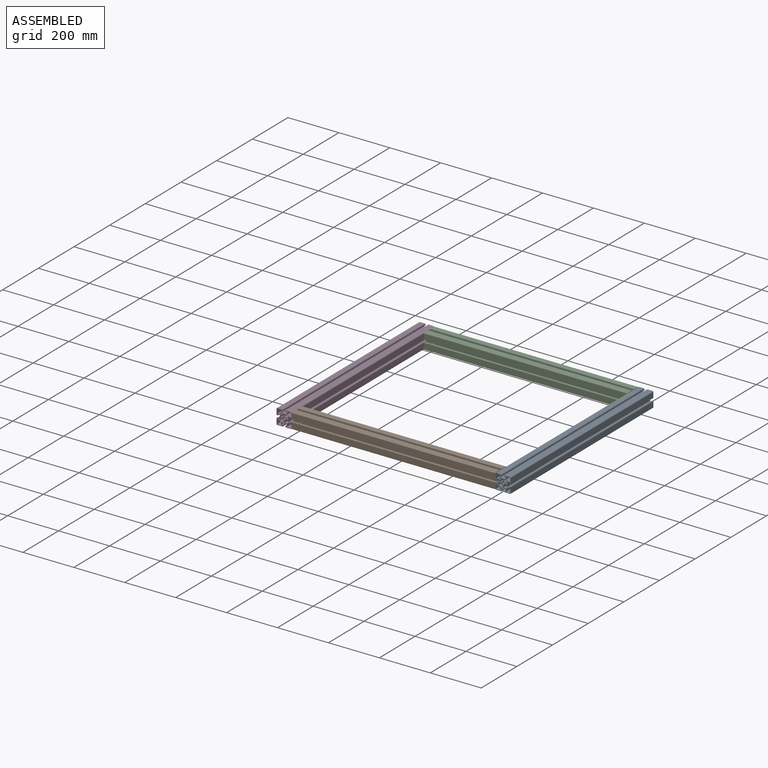
[diagram: assembled view]
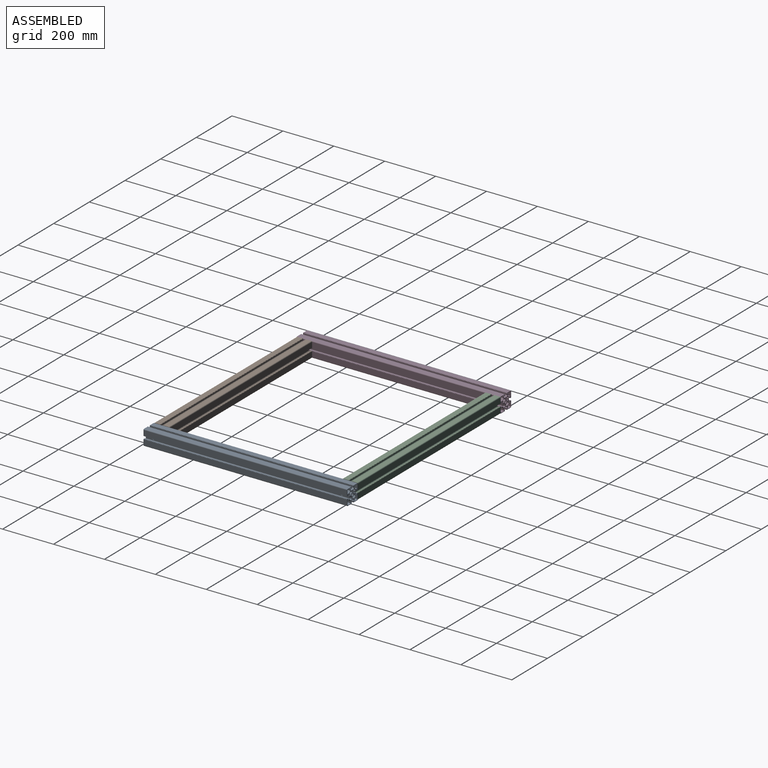
[diagram: assembled view, second angle]
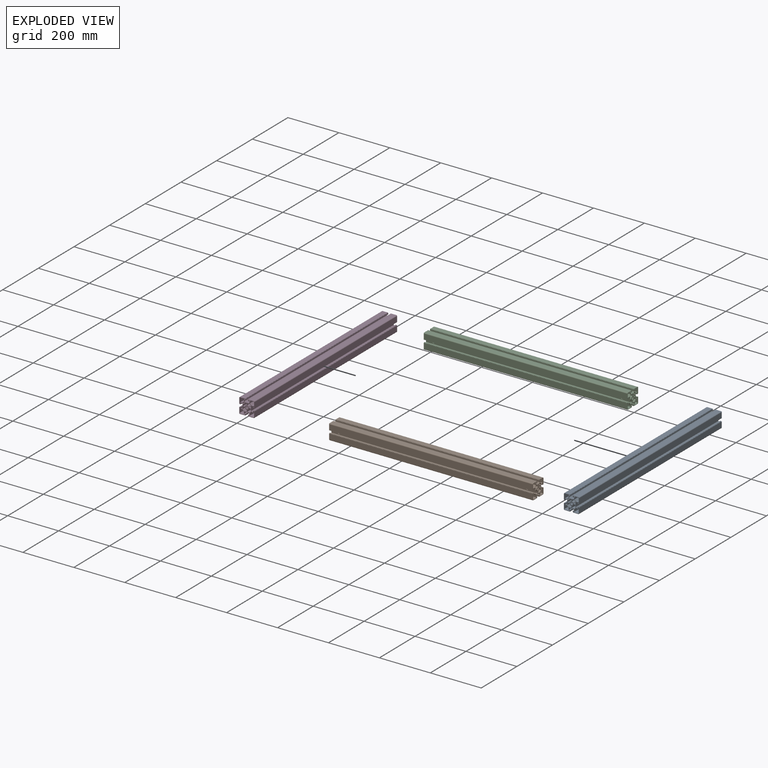
[diagram: exploded view]
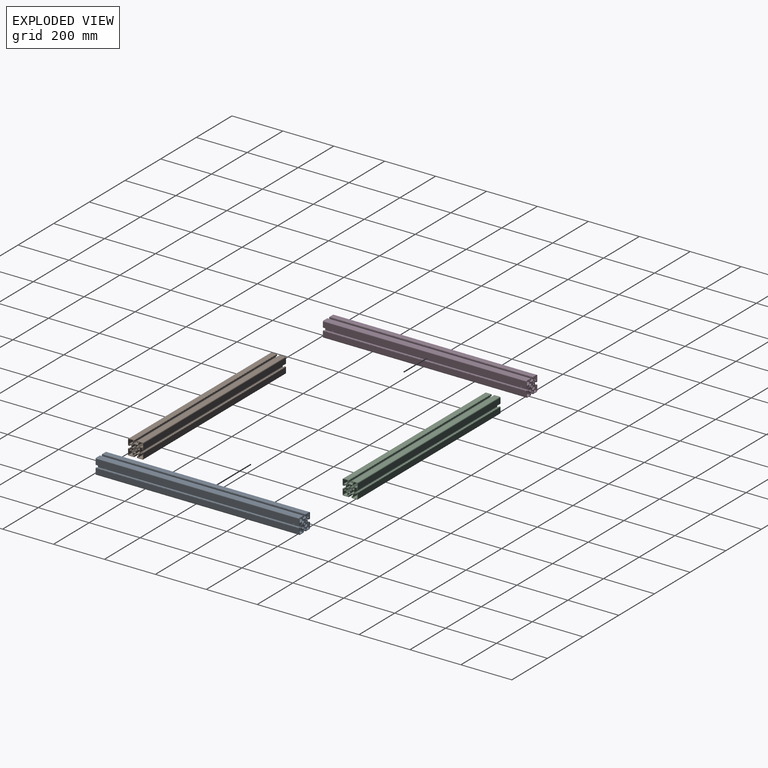
[diagram: exploded view, second angle]
ASSEMBLY  parts=4 mates=3
PART A: 258 faces, bbox 800x60x60 mm
  f0: cylinder r=8.05mm len=800mm, axis (-1,0,0), area 8542.8mm2, adj f34,f35,f36,f56,f57,f58,f59,f60
  f1: cylinder r=8.05mm len=800mm, axis (-1,0,0), area 8542.7mm2, adj f37,f38,f39,f54,f55,f61,f62,f63
  f2: cylinder r=8.05mm len=800mm, axis (-1,0,0), area 8542.7mm2, adj f40,f41,f42,f54,f55,f64,f65,f66
  f3: cylinder r=8.05mm len=800mm, axis (-1,0,0), area 8542.7mm2, adj f43,f44,f45,f56,f57,f67,f68,f69
  f4: cylinder r=5mm len=25.08mm, axis (-1,0,0), area 43.7mm2, adj f46,f187,f253,f254
  f5: cylinder r=5mm len=730.15mm, axis (-1,0,0), area 1274.2mm2, adj f47,f52,f254,f256
  f6: cylinder r=5mm len=25.08mm, axis (-1,0,0), area 43.7mm2, adj f53,f172,f252,f256
  f7: cylinder r=6.1mm len=26.43mm, axis (-1,0,0), area 68.2mm2, adj f46,f70,f253,f254
  f8: cylinder r=6.1mm len=732.86mm, axis (-1,0,0), area 1946.4mm2, adj f47,f71,f254,f256
  f9: cylinder r=6.1mm len=26.43mm, axis (-1,0,0), area 68.2mm2, adj f172,f173,f252,f256
  f10: cylinder r=5mm len=732.93mm, axis (-1,0,0), area 1278.2mm2, adj f54,f55,f71,f72,f254,f256
  f11: cylinder r=5mm len=26.46mm, axis (-1,0,0), area 45.7mm2, adj f55,f70,f174,f253,f254
  f12: cylinder r=5mm len=26.46mm, axis (-1,0,0), area 45.7mm2, adj f54,f73,f173,f252,f256
  f13: cylinder r=5mm len=732.93mm, axis (-1,0,0), area 1278.2mm2, adj f54,f55,f88,f89,f255,f257
  f14: cylinder r=5mm len=26.46mm, axis (-1,0,0), area 45.7mm2, adj f55,f87,f178,f253,f255
  f15: cylinder r=5mm len=26.46mm, axis (-1,0,0), area 45.7mm2, adj f54,f90,f177,f252,f257
  f16: cylinder r=6.1mm len=26.43mm, axis (-1,0,0), area 68.2mm2, adj f48,f178,f253,f255
  f17: cylinder r=6.1mm len=732.86mm, axis (-1,0,0), area 1946.4mm2, adj f49,f89,f255,f257
  f18: cylinder r=6.1mm len=26.43mm, axis (-1,0,0), area 68.2mm2, adj f90,f179,f252,f257
  f19: cylinder r=5mm len=25.08mm, axis (-1,0,0), area 43.7mm2, adj f48,f180,f253,f255
  f20: cylinder r=5mm len=730.15mm, axis (-1,0,0), area 1274.2mm2, adj f49,f50,f255,f257
  f21: cylinder r=5mm len=25.08mm, axis (-1,0,0), area 43.7mm2, adj f51,f179,f252,f257
  f22: cylinder r=6.1mm len=26.43mm, axis (-1,0,0), area 68.2mm2, adj f180,f181,f253,f255
  f23: cylinder r=6.1mm len=732.86mm, axis (-1,0,0), area 1946.4mm2, adj f50,f91,f255,f257
  f24: cylinder r=6.1mm len=26.43mm, axis (-1,0,0), area 68.2mm2, adj f51,f92,f252,f257
  f25: cylinder r=5mm len=26.46mm, axis (-1,0,0), area 45.7mm2, adj f57,f93,f181,f253,f255
  f26: cylinder r=5mm len=732.93mm, axis (-1,0,0), area 1278.2mm2, adj f56,f57,f91,f94,f255,f257
  f27: cylinder r=5mm len=26.46mm, axis (-1,0,0), area 45.7mm2, adj f56,f92,f182,f252,f257
  f28: cylinder r=5mm len=26.46mm, axis (-1,0,0), area 45.7mm2, adj f57,f110,f185,f253,f254
  f29: cylinder r=5mm len=732.93mm, axis (-1,0,0), area 1278.2mm2, adj f56,f57,f108,f111,f254,f256
  f30: cylinder r=5mm len=26.46mm, axis (-1,0,0), area 45.7mm2, adj f56,f109,f186,f252,f256
  f31: cylinder r=6.1mm len=26.43mm, axis (-1,0,0), area 68.2mm2, adj f110,f187,f253,f254
  f32: cylinder r=6.1mm len=732.86mm, axis (-1,0,0), area 1946.4mm2, adj f52,f111,f254,f256
  f33: cylinder r=6.1mm len=26.43mm, axis (-1,0,0), area 68.2mm2, adj f53,f186,f252,f256
  f34: plane 730.16x7.2mm, normal (0,-1,0), area 5257.5mm2, adj f0,f156,f254,f256
  f35: plane 25.08x7.2mm, normal (0,-1,0), area 180.6mm2, adj f0,f156,f253,f254
  f36: plane 25.08x7.2mm, normal (0,-1,0), area 180.6mm2, adj f0,f156,f252,f256
  f37: plane 25.08x7.2mm, normal (0,1,0), area 180.6mm2, adj f1,f157,f253,f254
  f38: plane 730.16x7.2mm, normal (0,1,0), area 5257.5mm2, adj f1,f157,f254,f256
  f39: plane 25.08x7.2mm, normal (0,1,0), area 180.6mm2, adj f1,f157,f252,f256
  f40: plane 25.08x7.2mm, normal (0,1,0), area 180.6mm2, adj f2,f166,f253,f255
  f41: plane 730.16x7.2mm, normal (0,1,0), area 5257.5mm2, adj f2,f166,f255,f257
  f42: plane 25.08x7.2mm, normal (0,1,0), area 180.6mm2, adj f2,f166,f252,f257
  f43: plane 730.16x7.2mm, normal (0,-1,0), area 5257.5mm2, adj f3,f167,f255,f257
  f44: plane 25.08x7.2mm, normal (0,-1,0), area 180.6mm2, adj f3,f167,f253,f255
  f45: plane 25.08x7.2mm, normal (0,-1,0), area 180.6mm2, adj f3,f167,f252,f257
  f46: plane 25.12x1.09mm, normal (0,0.98,-0.17), area 27.6mm2, adj f4,f7,f253,f254
  f47: plane 730.23x1.09mm, normal (0,0.98,-0.17), area 803.2mm2, adj f5,f8,f254,f256
  f48: plane 25.12x1.09mm, normal (0,0.98,0.17), area 27.6mm2, adj f16,f19,f253,f255
  f49: plane 730.23x1.09mm, normal (0,0.98,0.17), area 803.2mm2, adj f17,f20,f255,f257
  f50: plane 730.23x1.09mm, normal (0,-0.98,0.17), area 803.2mm2, adj f20,f23,f255,f257
  f51: plane 25.12x1.09mm, normal (0,-0.98,0.17), area 27.6mm2, adj f21,f24,f252,f257
  f52: plane 730.23x1.09mm, normal (0,-0.98,-0.17), area 803.2mm2, adj f5,f32,f254,f256
  f53: plane 25.12x1.09mm, normal (0,-0.98,-0.17), area 27.6mm2, adj f6,f33,f252,f256
  f54: cylinder r=5mm len=13.46mm, axis (0,-1,0), area 155.5mm2, adj f1,f2,f10,f12,f13,f15,f62,f63
  f55: cylinder r=5mm len=13.46mm, axis (0,-1,0), area 155.5mm2, adj f1,f2,f10,f11,f13,f14,f61,f62
  f56: cylinder r=5mm len=13.46mm, axis (0,-1,0), area 155.5mm2, adj f0,f3,f26,f27,f29,f30,f59,f60
  f57: cylinder r=5mm len=13.46mm, axis (0,-1,0), area 155.5mm2, adj f0,f3,f25,f26,f28,f29,f58,f59
  f58: plane 25.08x7.2mm, normal (0,0,1), area 180.6mm2, adj f0,f57,f152,f253
  f59: plane 730.16x7.2mm, normal (0,0,1), area 5257.5mm2, adj f0,f56,f57,f152
  f60: plane 25.08x7.2mm, normal (0,0,1), area 180.6mm2, adj f0,f56,f152,f252
  f61: plane 25.08x7.2mm, normal (0,0,1), area 180.6mm2, adj f1,f55,f161,f253
  f62: plane 730.16x7.2mm, normal (0,0,1), area 5257.5mm2, adj f1,f54,f55,f161
  f63: plane 25.08x7.2mm, normal (0,0,1), area 180.6mm2, adj f1,f54,f161,f252
  f64: plane 730.16x7.2mm, normal (0,0,-1), area 5257.5mm2, adj f2,f54,f55,f162
  f65: plane 25.08x7.2mm, normal (0,0,-1), area 180.6mm2, adj f2,f55,f162,f253
  f66: plane 25.08x7.2mm, normal (0,0,-1), area 180.6mm2, adj f2,f54,f162,f252
  f67: plane 730.16x7.2mm, normal (0,0,-1), area 5257.5mm2, adj f3,f56,f57,f171
  f68: plane 25.08x7.2mm, normal (0,0,-1), area 180.6mm2, adj f3,f57,f171,f253
  f69: plane 25.08x7.2mm, normal (0,0,-1), area 180.6mm2, adj f3,f56,f171,f252
  f70: plane 26.46x0.93mm, normal (0,-0.82,0.57), area 28.8mm2, adj f7,f11,f253,f254
  f71: plane 732.89x0.93mm, normal (0,-0.82,0.57), area 805.5mm2, adj f8,f10,f254,f256
  f72: plane 732.89x0.93mm, normal (0,0.57,-0.82), area 805.5mm2, adj f10,f54,f55,f75
  f73: plane 26.46x0.93mm, normal (0,0.57,-0.82), area 28.8mm2, adj f12,f54,f76,f252
  f74: cylinder r=6.1mm len=26.43mm, axis (-1,0,0), area 68.2mm2, adj f55,f77,f174,f253
  f75: cylinder r=6.1mm len=732.86mm, axis (-1,0,0), area 1946.4mm2, adj f54,f55,f72,f78
  f76: cylinder r=6.1mm len=26.43mm, axis (-1,0,0), area 68.2mm2, adj f54,f73,f175,f252
  f77: plane 25.12x1.09mm, normal (0,-0.17,0.98), area 27.6mm2, adj f55,f74,f80,f253
  f78: plane 730.23x1.09mm, normal (0,-0.17,0.98), area 803.2mm2, adj f54,f55,f75,f79
  f79: cylinder r=5mm len=730.15mm, axis (-1,0,0), area 1274.2mm2, adj f54,f55,f78,f82
  f80: cylinder r=5mm len=25.08mm, axis (-1,0,0), area 43.7mm2, adj f55,f77,f176,f253
  f81: cylinder r=5mm len=25.08mm, axis (-1,0,0), area 43.7mm2, adj f54,f83,f175,f252
  f82: plane 730.23x1.09mm, normal (0,-0.17,-0.98), area 803.2mm2, adj f54,f55,f79,f85
  f83: plane 25.12x1.09mm, normal (0,-0.17,-0.98), area 27.6mm2, adj f54,f81,f86,f252
  f84: cylinder r=6.1mm len=26.43mm, axis (-1,0,0), area 68.2mm2, adj f55,f87,f176,f253
  f85: cylinder r=6.1mm len=732.86mm, axis (-1,0,0), area 1946.4mm2, adj f54,f55,f82,f88
  f86: cylinder r=6.1mm len=26.43mm, axis (-1,0,0), area 68.2mm2, adj f54,f83,f177,f252
  f87: plane 26.46x0.93mm, normal (0,0.57,0.82), area 28.8mm2, adj f14,f55,f84,f253
  f88: plane 732.89x0.93mm, normal (0,0.57,0.82), area 805.5mm2, adj f13,f54,f55,f85
  f89: plane 732.89x0.93mm, normal (0,-0.82,-0.57), area 805.5mm2, adj f13,f17,f255,f257
  f90: plane 26.46x0.93mm, normal (0,-0.82,-0.57), area 28.8mm2, adj f15,f18,f252,f257
  f91: plane 732.89x0.93mm, normal (0,0.82,-0.57), area 805.5mm2, adj f23,f26,f255,f257
  f92: plane 26.46x0.93mm, normal (0,0.82,-0.57), area 28.8mm2, adj f24,f27,f252,f257
  f93: plane 26.46x0.93mm, normal (0,-0.57,0.82), area 28.8mm2, adj f25,f57,f95,f253
  f94: plane 732.89x0.93mm, normal (0,-0.57,0.82), area 805.5mm2, adj f26,f56,f57,f96
  f95: cylinder r=6.1mm len=26.43mm, axis (-1,0,0), area 68.2mm2, adj f57,f93,f183,f253
  f96: cylinder r=6.1mm len=732.86mm, axis (-1,0,0), area 1946.4mm2, adj f56,f57,f94,f98
  f97: cylinder r=6.1mm len=26.43mm, axis (-1,0,0), area 68.2mm2, adj f56,f99,f182,f252
  f98: plane 730.23x1.09mm, normal (0,0.17,-0.98), area 803.2mm2, adj f56,f57,f96,f101
  f99: plane 25.12x1.09mm, normal (0,0.17,-0.98), area 27.6mm2, adj f56,f97,f102,f252
  f100: cylinder r=5mm len=25.08mm, axis (-1,0,0), area 43.7mm2, adj f57,f103,f183,f253
  f101: cylinder r=5mm len=730.15mm, axis (-1,0,0), area 1274.2mm2, adj f56,f57,f98,f104
  f102: cylinder r=5mm len=25.08mm, axis (-1,0,0), area 43.7mm2, adj f56,f99,f184,f252
  f103: plane 25.12x1.09mm, normal (0,0.17,0.98), area 27.6mm2, adj f57,f100,f105,f253
  f104: plane 730.23x1.09mm, normal (0,0.17,0.98), area 803.2mm2, adj f56,f57,f101,f106
  f105: cylinder r=6.1mm len=26.43mm, axis (-1,0,0), area 68.2mm2, adj f57,f103,f185,f253
  f106: cylinder r=6.1mm len=732.86mm, axis (-1,0,0), area 1946.4mm2, adj f56,f57,f104,f108
  f107: cylinder r=6.1mm len=26.43mm, axis (-1,0,0), area 68.2mm2, adj f56,f109,f184,f252
  f108: plane 732.89x0.93mm, normal (0,-0.57,-0.82), area 805.5mm2, adj f29,f56,f57,f106
  f109: plane 26.46x0.93mm, normal (0,-0.57,-0.82), area 28.8mm2, adj f30,f56,f107,f252
  f110: plane 26.46x0.93mm, normal (0,0.82,0.57), area 28.8mm2, adj f28,f31,f253,f254
  f111: plane 732.89x0.93mm, normal (0,0.82,0.57), area 805.5mm2, adj f29,f32,f254,f256
  f112: plane 800x7.81mm, normal (0,-1,0), area 6248.1mm2, adj f113,f121,f252,f253
  f113: plane 800x6.14mm, normal (0,-0.71,0.71), area 6946.5mm2, adj f112,f114,f252,f253
  f114: plane 800x7.81mm, normal (0,0,1), area 6248.1mm2, adj f113,f115,f252,f253
  f115: plane 800x4.35mm, normal (0,-1,0), area 3480mm2, adj f114,f116,f252,f253
  f116: plane 800x2.4mm, normal (0,0,1), area 1920mm2, adj f115,f117,f252,f253
  f117: plane 800x18.2mm, normal (0,1,0), area 14560mm2, adj f116,f118,f252,f253
  f118: cylinder r=2.5mm len=800mm, axis (-1,0,0), area 3141.6mm2, adj f117,f119,f252,f253
  f119: plane 800x18.2mm, normal (0,0,-1), area 14560mm2, adj f118,f120,f252,f253
  f120: plane 800x2.4mm, normal (0,-1,0), area 1920mm2, adj f119,f121,f252,f253
  f121: plane 800x4.35mm, normal (0,0,1), area 3480mm2, adj f112,f120,f252,f253
  f122: plane 800x7.81mm, normal (0,0,1), area 6248.1mm2, adj f123,f131,f252,f253
  f123: plane 800x6.14mm, normal (0,0.71,0.71), area 6946.5mm2, adj f122,f124,f252,f253
  f124: plane 800x7.81mm, normal (0,1,0), area 6248.1mm2, adj f123,f125,f252,f253
  f125: plane 800x4.35mm, normal (0,0,1), area 3480mm2, adj f124,f126,f252,f253
  f126: plane 800x2.4mm, normal (0,1,0), area 1920mm2, adj f125,f127,f252,f253
  f127: plane 800x18.2mm, normal (0,0,-1), area 14560mm2, adj f126,f128,f252,f253
  f128: cylinder r=2.5mm len=800mm, axis (-1,0,0), area 3141.6mm2, adj f127,f129,f252,f253
  f129: plane 800x18.2mm, normal (0,-1,0), area 14560mm2, adj f128,f130,f252,f253
  f130: plane 800x2.4mm, normal (0,0,1), area 1920mm2, adj f129,f131,f252,f253
  f131: plane 800x4.35mm, normal (0,1,0), area 3480mm2, adj f122,f130,f252,f253
  f132: plane 800x7.81mm, normal (0,1,0), area 6248.1mm2, adj f133,f141,f252,f253
  f133: plane 800x6.14mm, normal (0,0.71,-0.71), area 6946.5mm2, adj f132,f134,f252,f253
  f134: plane 800x7.81mm, normal (0,0,-1), area 6248.1mm2, adj f133,f135,f252,f253
  f135: plane 800x4.35mm, normal (0,1,0), area 3480mm2, adj f134,f136,f252,f253
  f136: plane 800x2.4mm, normal (0,0,-1), area 1920mm2, adj f135,f137,f252,f253
  f137: plane 800x18.2mm, normal (0,-1,0), area 14560mm2, adj f136,f138,f252,f253
  f138: cylinder r=2.5mm len=800mm, axis (-1,0,0), area 3141.6mm2, adj f137,f139,f252,f253
  f139: plane 800x18.2mm, normal (0,0,1), area 14560mm2, adj f138,f140,f252,f253
  f140: plane 800x2.4mm, normal (0,1,0), area 1920mm2, adj f139,f141,f252,f253
  f141: plane 800x4.35mm, normal (0,0,-1), area 3480mm2, adj f132,f140,f252,f253
  f142: plane 800x7.81mm, normal (0,0,-1), area 6248.1mm2, adj f143,f151,f252,f253
  f143: plane 800x6.14mm, normal (0,-0.71,-0.71), area 6946.5mm2, adj f142,f144,f252,f253
  f144: plane 800x7.81mm, normal (0,-1,0), area 6248.1mm2, adj f143,f145,f252,f253
  f145: plane 800x4.35mm, normal (0,0,-1), area 3480mm2, adj f144,f146,f252,f253
  f146: plane 800x2.4mm, normal (0,-1,0), area 1920mm2, adj f145,f147,f252,f253
  f147: plane 800x18.2mm, normal (0,0,1), area 14560mm2, adj f146,f148,f252,f253
  f148: cylinder r=2.5mm len=800mm, axis (-1,0,0), area 3141.6mm2, adj f147,f149,f252,f253
  f149: plane 800x18.2mm, normal (0,1,0), area 14560mm2, adj f148,f150,f252,f253
  f150: plane 800x2.4mm, normal (0,0,-1), area 1920mm2, adj f149,f151,f252,f253
  f151: plane 800x4.35mm, normal (0,-1,0), area 3480mm2, adj f142,f150,f252,f253
  f152: plane 800x7.1mm, normal (0,1,0), area 5615.8mm2, adj f56,f57,f58,f59,f60,f153,f252,f253
  f153: plane 800x2.05mm, normal (0,0.71,0.71), area 2318.6mm2, adj f152,f154,f252,f253
  f154: plane 800x7.2mm, normal (0,0.71,-0.71), area 8150.9mm2, adj f153,f155,f252,f253
  f155: plane 800x2.05mm, normal (0,-0.71,-0.71), area 2318.6mm2, adj f154,f156,f252,f253
  f156: plane 800x7.1mm, normal (0,0,-1), area 5615.8mm2, adj f34,f35,f36,f155,f252,f253,f254,f256
  f157: plane 800x7.1mm, normal (0,0,-1), area 5615.8mm2, adj f37,f38,f39,f158,f252,f253,f254,f256
  f158: plane 800x2.05mm, normal (0,0.71,-0.71), area 2318.6mm2, adj f157,f159,f252,f253
  f159: plane 800x7.2mm, normal (0,-0.71,-0.71), area 8150.9mm2, adj f158,f160,f252,f253
  f160: plane 800x2.05mm, normal (0,-0.71,0.71), area 2318.6mm2, adj f159,f161,f252,f253
  f161: plane 800x7.1mm, normal (0,-1,0), area 5615.8mm2, adj f54,f55,f61,f62,f63,f160,f252,f253
  f162: plane 800x7.1mm, normal (0,-1,0), area 5615.8mm2, adj f54,f55,f64,f65,f66,f163,f252,f253
  f163: plane 800x2.05mm, normal (0,-0.71,-0.71), area 2318.6mm2, adj f162,f164,f252,f253
  f164: plane 800x7.2mm, normal (0,-0.71,0.71), area 8150.9mm2, adj f163,f165,f252,f253
  f165: plane 800x2.05mm, normal (0,0.71,0.71), area 2318.6mm2, adj f164,f166,f252,f253
  f166: plane 800x7.1mm, normal (0,0,1), area 5615.8mm2, adj f40,f41,f42,f165,f252,f253,f255,f257
  f167: plane 800x7.1mm, normal (0,0,1), area 5615.8mm2, adj f43,f44,f45,f168,f252,f253,f255,f257
  f168: plane 800x2.05mm, normal (0,-0.71,0.71), area 2318.6mm2, adj f167,f169,f252,f253
  f169: plane 800x7.2mm, normal (0,0.71,0.71), area 8150.9mm2, adj f168,f170,f252,f253
  f170: plane 800x2.05mm, normal (0,0.71,-0.71), area 2318.6mm2, adj f169,f171,f252,f253
  f171: plane 800x7.1mm, normal (0,1,0), area 5615.8mm2, adj f56,f57,f67,f68,f69,f170,f252,f253
  f172: plane 25.12x1.09mm, normal (0,0.98,-0.17), area 27.6mm2, adj f6,f9,f252,f256
  f173: plane 26.46x0.93mm, normal (0,-0.82,0.57), area 28.8mm2, adj f9,f12,f252,f256
  f174: plane 26.46x0.93mm, normal (0,0.57,-0.82), area 28.8mm2, adj f11,f55,f74,f253
  f175: plane 25.12x1.09mm, normal (0,-0.17,0.98), area 27.6mm2, adj f54,f76,f81,f252
  f176: plane 25.12x1.09mm, normal (0,-0.17,-0.98), area 27.6mm2, adj f55,f80,f84,f253
  f177: plane 26.46x0.93mm, normal (0,0.57,0.82), area 28.8mm2, adj f15,f54,f86,f252
  f178: plane 26.46x0.93mm, normal (0,-0.82,-0.57), area 28.8mm2, adj f14,f16,f253,f255
  f179: plane 25.12x1.09mm, normal (0,0.98,0.17), area 27.6mm2, adj f18,f21,f252,f257
  f180: plane 25.12x1.09mm, normal (0,-0.98,0.17), area 27.6mm2, adj f19,f22,f253,f255
  f181: plane 26.46x0.93mm, normal (0,0.82,-0.57), area 28.8mm2, adj f22,f25,f253,f255
  f182: plane 26.46x0.93mm, normal (0,-0.57,0.82), area 28.8mm2, adj f27,f56,f97,f252
  f183: plane 25.12x1.09mm, normal (0,0.17,-0.98), area 27.6mm2, adj f57,f95,f100,f253
  f184: plane 25.12x1.09mm, normal (0,0.17,0.98), area 27.6mm2, adj f56,f102,f107,f252
  f185: plane 26.46x0.93mm, normal (0,-0.57,-0.82), area 28.8mm2, adj f28,f57,f105,f253
  f186: plane 26.46x0.93mm, normal (0,0.82,0.57), area 28.8mm2, adj f30,f33,f252,f256
  f187: plane 25.12x1.09mm, normal (0,-0.98,-0.17), area 27.6mm2, adj f4,f31,f253,f254
  f188: plane 800x21.2mm, normal (0,0,-1), area 16960mm2, adj f189,f251,f252,f253
  f189: cylinder r=3mm len=800mm, axis (-1,0,0), area 3769.9mm2, adj f188,f190,f252,f253
  f190: plane 800x21.2mm, normal (0,-1,0), area 16960mm2, adj f189,f191,f252,f253
  f191: plane 800x1.5mm, normal (0,0,1), area 1200mm2, adj f190,f192,f252,f253
  f192: plane 800x0.8mm, normal (0,-1,0), area 640mm2, adj f191,f193,f252,f253
  f193: plane 800x4.5mm, normal (0,0,1), area 3600mm2, adj f192,f194,f252,f253
  f194: plane 800x5.05mm, normal (0,1,0), area 4040mm2, adj f193,f195,f252,f253
  f195: plane 800x4.2mm, normal (0,0,1), area 3360mm2, adj f194,f196,f252,f253
  f196: plane 800x2.8mm, normal (0,-0.71,0.71), area 3167.8mm2, adj f195,f197,f252,f253
  f197: plane 800x14.5mm, normal (0,-1,0), area 11442.9mm2, adj f56,f57,f196,f198,f252,f253
  f198: plane 800x2.8mm, normal (0,-0.71,-0.71), area 3167.8mm2, adj f197,f199,f252,f253
  f199: plane 800x4.2mm, normal (0,0,-1), area 3360mm2, adj f198,f200,f252,f253
  f200: plane 800x5.05mm, normal (0,1,0), area 4040mm2, adj f199,f201,f252,f253
  f201: plane 800x4.5mm, normal (0,0,-1), area 3600mm2, adj f200,f202,f252,f253
  f202: plane 800x0.8mm, normal (0,-1,0), area 640mm2, adj f201,f203,f252,f253
  f203: plane 800x1.5mm, normal (0,0,-1), area 1200mm2, adj f202,f204,f252,f253
  f204: plane 800x21.2mm, normal (0,-1,0), area 16960mm2, adj f203,f205,f252,f253
  f205: cylinder r=3mm len=800mm, axis (-1,0,0), area 3769.9mm2, adj f204,f206,f252,f253
  f206: plane 800x21.2mm, normal (0,0,1), area 16960mm2, adj f205,f207,f252,f253
  f207: plane 800x1.5mm, normal (0,1,0), area 1200mm2, adj f206,f208,f252,f253
  f208: plane 800x0.8mm, normal (0,0,1), area 640mm2, adj f207,f209,f252,f253
  f209: plane 800x4.5mm, normal (0,1,0), area 3600mm2, adj f208,f210,f252,f253
  f210: plane 800x5.05mm, normal (0,0,-1), area 4040mm2, adj f209,f211,f252,f253
  f211: plane 800x4.2mm, normal (0,1,0), area 3360mm2, adj f210,f212,f252,f253
  f212: plane 800x2.8mm, normal (0,0.71,0.71), area 3167.8mm2, adj f211,f213,f252,f253
  f213: plane 800x14.5mm, normal (0,0,1), area 11442.9mm2, adj f212,f214,f252,f253,f254,f256
  f214: plane 800x2.8mm, normal (0,-0.71,0.71), area 3167.8mm2, adj f213,f215,f252,f253
  f215: plane 800x4.2mm, normal (0,-1,0), area 3360mm2, adj f214,f216,f252,f253
  f216: plane 800x5.05mm, normal (0,0,-1), area 4040mm2, adj f215,f217,f252,f253
  f217: plane 800x4.5mm, normal (0,-1,0), area 3600mm2, adj f216,f218,f252,f253
  f218: plane 800x0.8mm, normal (0,0,1), area 640mm2, adj f217,f219,f252,f253
  f219: plane 800x1.5mm, normal (0,-1,0), area 1200mm2, adj f218,f220,f252,f253
  f220: plane 800x21.2mm, normal (0,0,1), area 16960mm2, adj f219,f221,f252,f253
  f221: cylinder r=3mm len=800mm, axis (-1,0,0), area 3769.9mm2, adj f220,f222,f252,f253
  f222: plane 800x21.2mm, normal (0,1,0), area 16960mm2, adj f221,f223,f252,f253
  f223: plane 800x1.5mm, normal (0,0,-1), area 1200mm2, adj f222,f224,f252,f253
  f224: plane 800x0.8mm, normal (0,1,0), area 640mm2, adj f223,f225,f252,f253
  f225: plane 800x4.5mm, normal (0,0,-1), area 3600mm2, adj f224,f226,f252,f253
  f226: plane 800x5.05mm, normal (0,-1,0), area 4040mm2, adj f225,f227,f252,f253
  f227: plane 800x4.2mm, normal (0,0,-1), area 3360mm2, adj f226,f228,f252,f253
  f228: plane 800x2.8mm, normal (0,0.71,-0.71), area 3167.8mm2, adj f227,f229,f252,f253
  f229: plane 800x14.5mm, normal (0,1,0), area 11442.9mm2, adj f54,f55,f228,f230,f252,f253
  f230: plane 800x2.8mm, normal (0,0.71,0.71), area 3167.8mm2, adj f229,f231,f252,f253
  f231: plane 800x4.2mm, normal (0,0,1), area 3360mm2, adj f230,f232,f252,f253
  f232: plane 800x5.05mm, normal (0,-1,0), area 4040mm2, adj f231,f233,f252,f253
  f233: plane 800x4.5mm, normal (0,0,1), area 3600mm2, adj f232,f234,f252,f253
  f234: plane 800x0.8mm, normal (0,1,0), area 640mm2, adj f233,f235,f252,f253
  f235: plane 800x1.5mm, normal (0,0,1), area 1200mm2, adj f234,f236,f252,f253
  f236: plane 800x21.2mm, normal (0,1,0), area 16960mm2, adj f235,f237,f252,f253
  f237: cylinder r=3mm len=800mm, axis (-1,0,0), area 3769.9mm2, adj f236,f238,f252,f253
  f238: plane 800x21.2mm, normal (0,0,-1), area 16960mm2, adj f237,f239,f252,f253
  f239: plane 800x1.5mm, normal (0,-1,0), area 1200mm2, adj f238,f240,f252,f253
  f240: plane 800x0.8mm, normal (0,0,-1), area 640mm2, adj f239,f241,f252,f253
  f241: plane 800x4.5mm, normal (0,-1,0), area 3600mm2, adj f240,f242,f252,f253
  f242: plane 800x5.05mm, normal (0,0,1), area 4040mm2, adj f241,f243,f252,f253
  f243: plane 800x4.2mm, normal (0,-1,0), area 3360mm2, adj f242,f244,f252,f253
  f244: plane 800x2.8mm, normal (0,-0.71,-0.71), area 3167.8mm2, adj f243,f245,f252,f253
  f245: plane 800x14.5mm, normal (0,0,-1), area 11442.9mm2, adj f244,f246,f252,f253,f255,f257
  f246: plane 800x2.8mm, normal (0,0.71,-0.71), area 3167.8mm2, adj f245,f247,f252,f253
  f247: plane 800x4.2mm, normal (0,1,0), area 3360mm2, adj f246,f248,f252,f253
  f248: plane 800x5.05mm, normal (0,0,1), area 4040mm2, adj f247,f249,f252,f253
  f249: plane 800x4.5mm, normal (0,1,0), area 3600mm2, adj f248,f250,f252,f253
  f250: plane 800x0.8mm, normal (0,0,-1), area 640mm2, adj f249,f251,f252,f253
  f251: plane 800x1.5mm, normal (0,1,0), area 1200mm2, adj f188,f250,f252,f253
  f252: plane 60x60mm, normal (-1,0,0), area 956.1mm2, adj f0,f1,f2,f3,f6,f9,f12,f15
  f253: plane 60x60mm, normal (1,0,0), area 956.1mm2, adj f0,f1,f2,f3,f4,f7,f11,f14
  f254: cylinder r=5mm len=13.46mm, axis (0,0,1), area 155.5mm2, adj f0,f1,f4,f5,f7,f8,f10,f11
  f255: cylinder r=5mm len=13.46mm, axis (0,0,1), area 155.5mm2, adj f2,f3,f13,f14,f16,f17,f19,f20
  f256: cylinder r=5mm len=13.46mm, axis (0,0,1), area 155.5mm2, adj f0,f1,f5,f6,f8,f9,f10,f12
  f257: cylinder r=5mm len=13.46mm, axis (0,0,1), area 155.5mm2, adj f2,f3,f13,f15,f17,f18,f20,f21
PART B: same geometry as A
PART C: same geometry as A
PART D: same geometry as A
PLACE A rot(axis=(0.71,0.71,0),180deg) t=(424,-768.95,-4.06)mm
PLACE B rot(axis=(-1,0,0),90deg) t=(-406,-738.95,-4.06)mm
PLACE C rot(axis=(0,-0.71,0.71),180deg) t=(394,1.05,-4.06)mm fixed
PLACE D rot(axis=(0,0,1),90deg) t=(-436,-768.95,-4.06)mm
MATE fastened C.f31 <-> D.f55  axis (-1,0,0) through (-406,1.05,-4.06)mm
MATE fastened A.f54 <-> B.f31  axis (-1,0,0) through (407,-738.95,-4.06)mm
MATE fastened B.f7 <-> D.f54  axis (-1,0,0) through (-406,-738.95,-4.06)mm
